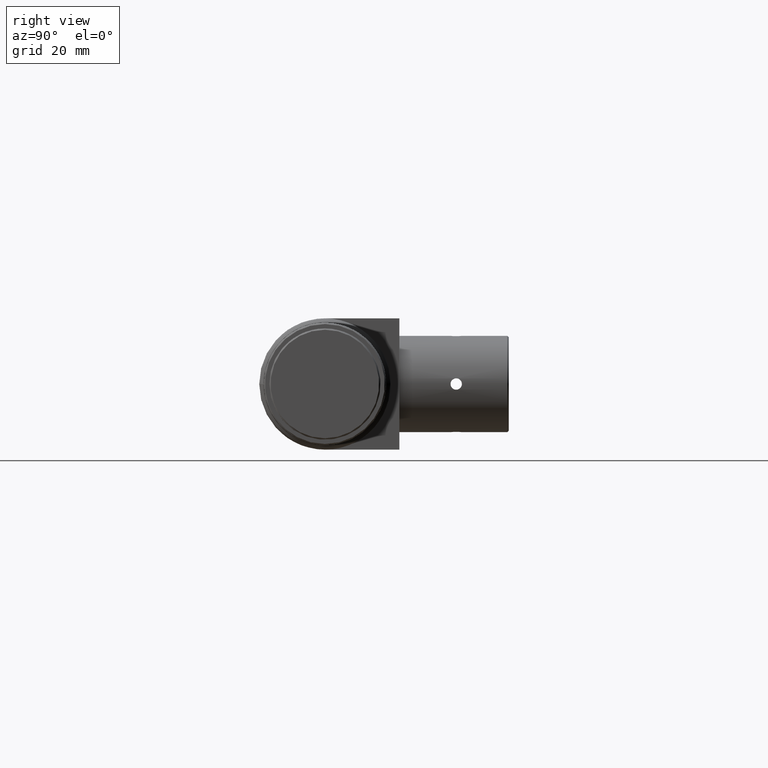
[diagram: clean part render]
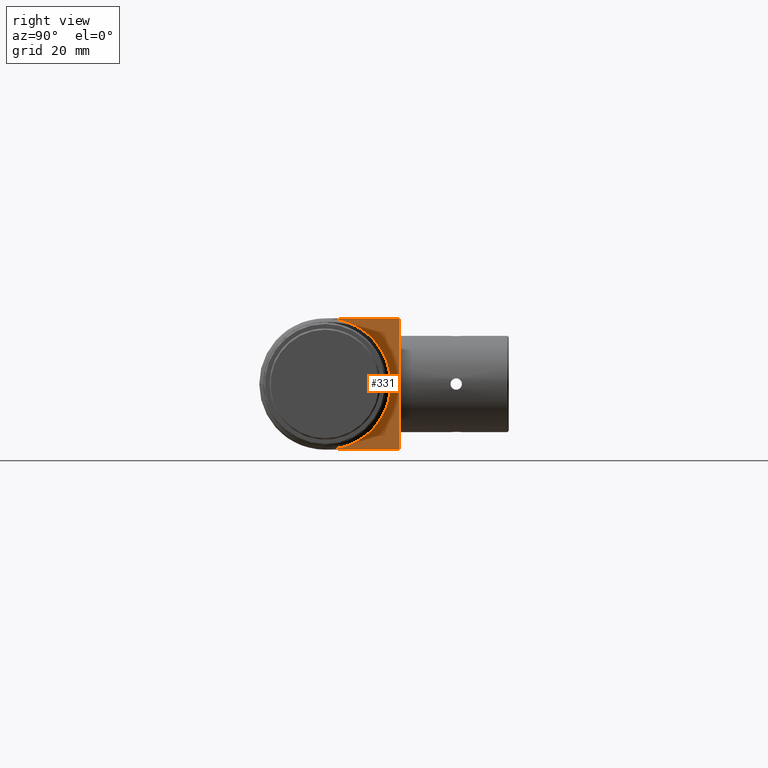
[diagram: same view with one face highlighted and labeled with its STEP entity id]
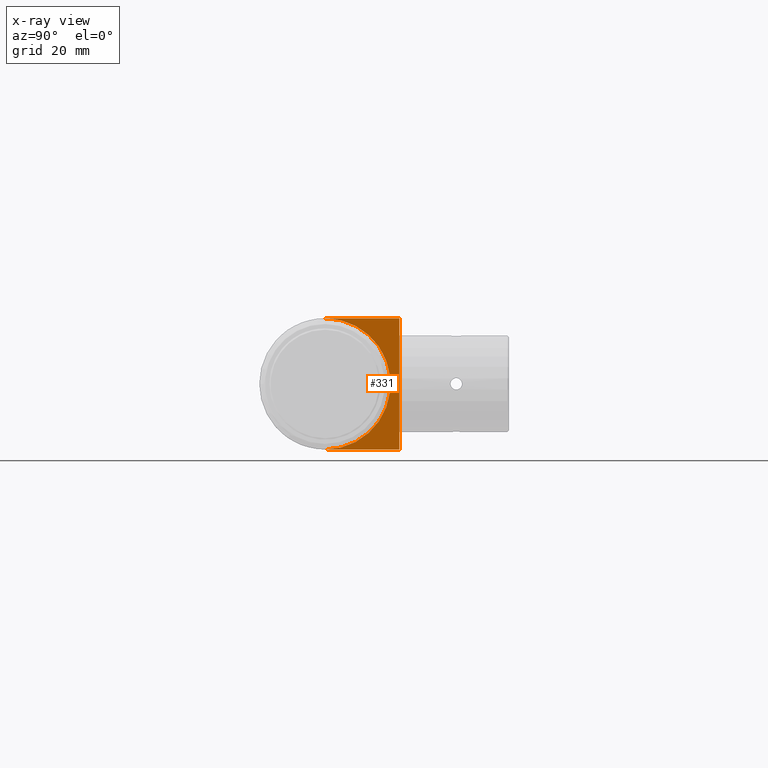
[diagram: x-ray of the same camera — body ghosted, the highlighted face saturated]
A machine part, right view. The second image highlights one B-rep face of the part: STEP entity #331.
The next image is the same camera in x-ray: the body ghosted, the highlighted face saturated — about 0% of this face is hidden behind the body in this view.
In plain terms, the highlighted planar face has unit normal (-1, 0, 0).
Its self-contained STEP definition (entity closure, byte-faithful):
#85 = CARTESIAN_POINT ( 'NONE',  ( 60.39999999999999147, 17.00000000000000000, -15.00000000000001243 ) ) ;
#115 = VECTOR ( 'NONE', #1259, 1000.000000000000000 ) ;
#151 = AXIS2_PLACEMENT_3D ( 'NONE', #296, #310, #1075 ) ;
#211 = PLANE ( 'NONE',  #151 ) ;
#254 = VERTEX_POINT ( 'NONE', #85 ) ;
#296 = CARTESIAN_POINT ( 'NONE',  ( 60.39999999999999858, 17.00000000000000000, 15.00000000000000888 ) ) ;
#310 = DIRECTION ( 'NONE',  ( -1.000000000000000000, 0.000000000000000000, 0.000000000000000000 ) ) ;
#313 = ORIENTED_EDGE ( 'NONE', *, *, #1096, .F. ) ;
#331 = ADVANCED_FACE ( 'NONE', ( #1165 ), #211, .F. ) ;
#490 = CIRCLE ( 'NONE', #1006, 15.00000000000000888 ) ;
#550 = DIRECTION ( 'NONE',  ( -0.000000000000000000, -1.000000000000000000, -0.000000000000000000 ) ) ;
#576 = VERTEX_POINT ( 'NONE', #1230 ) ;
#669 = VERTEX_POINT ( 'NONE', #1244 ) ;
#678 = CARTESIAN_POINT ( 'NONE',  ( 60.39999999999999858, 17.00000000000000000, 15.00000000000000888 ) ) ;
#693 = DIRECTION ( 'NONE',  ( 0.000000000000000000, -1.000000000000000000, 0.000000000000000000 ) ) ;
#695 = VERTEX_POINT ( 'NONE', #1030 ) ;
#763 = CARTESIAN_POINT ( 'NONE',  ( 60.39999999999999858, 17.00000000000000000, -15.00000000000001243 ) ) ;
#770 = ORIENTED_EDGE ( 'NONE', *, *, #1243, .T. ) ;
#772 = VECTOR ( 'NONE', #1027, 1000.000000000000000 ) ;
#785 = EDGE_CURVE ( 'NONE', #576, #254, #867, .T. ) ;
#809 = VECTOR ( 'NONE', #550, 1000.000000000000000 ) ;
#834 = CARTESIAN_POINT ( 'NONE',  ( 60.39999999999999858, -8.542017784444048221E-15, 0.000000000000000000 ) ) ;
#847 = DIRECTION ( 'NONE',  ( 1.000000000000000000, 1.149412201554173596E-16, 0.000000000000000000 ) ) ;
#867 = LINE ( 'NONE', #678, #115 ) ;
#891 = EDGE_LOOP ( 'NONE', ( #313, #920, #914, #770 ) ) ;
#914 = ORIENTED_EDGE ( 'NONE', *, *, #785, .F. ) ;
#920 = ORIENTED_EDGE ( 'NONE', *, *, #1058, .F. ) ;
#936 = LINE ( 'NONE', #1016, #809 ) ;
#1006 = AXIS2_PLACEMENT_3D ( 'NONE', #834, #847, #693 ) ;
#1016 = CARTESIAN_POINT ( 'NONE',  ( 60.39999999999999858, 17.00000000000000000, 15.00000000000000888 ) ) ;
#1027 = DIRECTION ( 'NONE',  ( -0.000000000000000000, -1.000000000000000000, 0.000000000000000000 ) ) ;
#1030 = CARTESIAN_POINT ( 'NONE',  ( 60.39999999999999858, -4.005256723311098228E-15, 15.00000000000000888 ) ) ;
#1058 = EDGE_CURVE ( 'NONE', #254, #669, #1241, .T. ) ;
#1075 = DIRECTION ( 'NONE',  ( 0.000000000000000000, 0.000000000000000000, 1.000000000000000000 ) ) ;
#1096 = EDGE_CURVE ( 'NONE', #669, #695, #490, .T. ) ;
#1165 = FACE_OUTER_BOUND ( 'NONE', #891, .T. ) ;
#1230 = CARTESIAN_POINT ( 'NONE',  ( 60.39999999999999147, 17.00000000000000000, 15.00000000000000888 ) ) ;
#1241 = LINE ( 'NONE', #763, #772 ) ;
#1243 = EDGE_CURVE ( 'NONE', #576, #695, #936, .T. ) ;
#1244 = CARTESIAN_POINT ( 'NONE',  ( 60.39999999999999858, -5.029519876523314617E-16, -15.00000000000001066 ) ) ;
#1259 = DIRECTION ( 'NONE',  ( -0.000000000000000000, -0.000000000000000000, -1.000000000000000000 ) ) ;